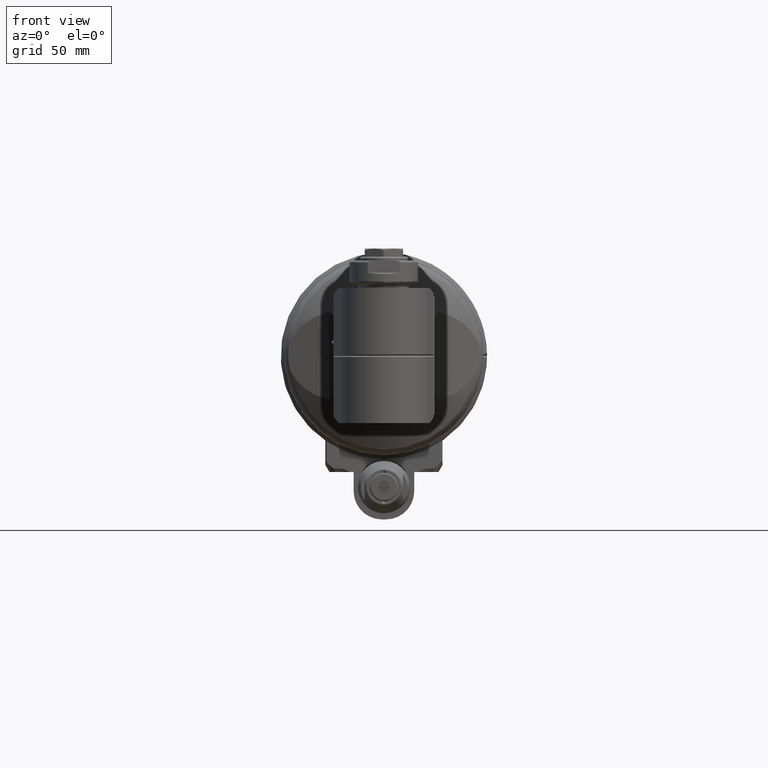
[diagram: clean part render]
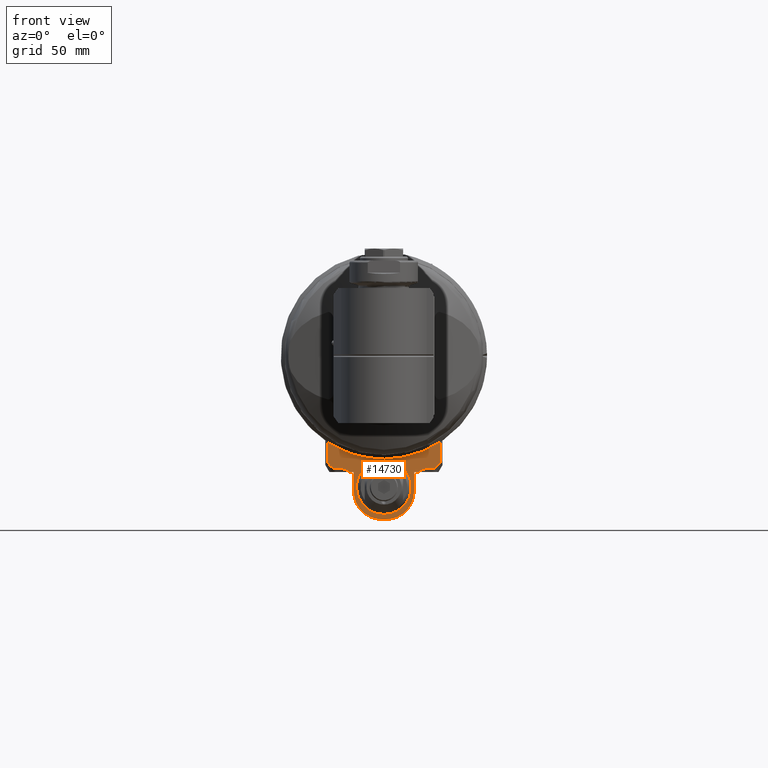
[diagram: same view with one face highlighted and labeled with its STEP entity id]
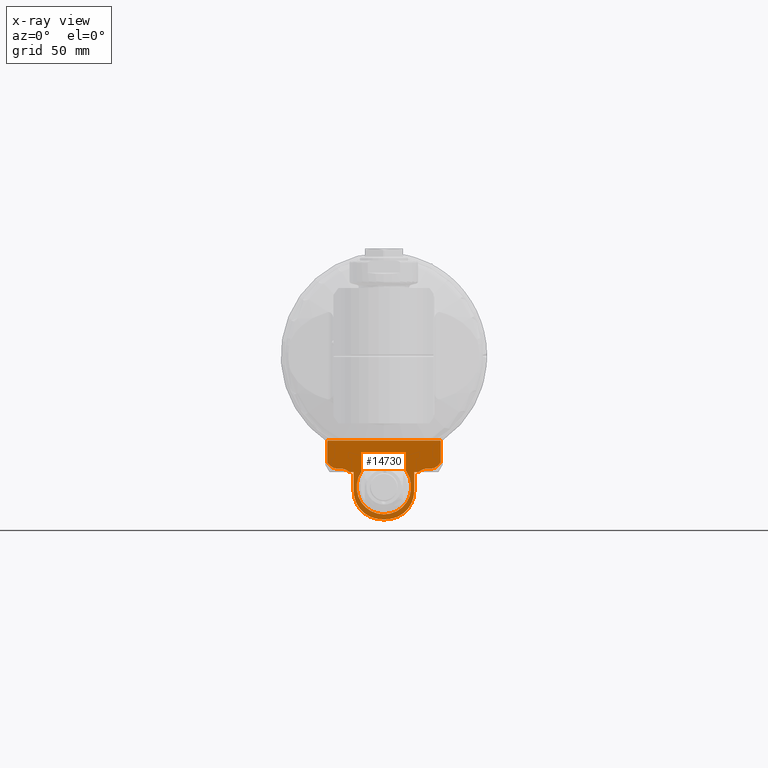
[diagram: x-ray of the same camera — body ghosted, the highlighted face saturated]
A machine part, front view. The second image highlights one B-rep face of the part: STEP entity #14730.
The next image is the same camera in x-ray: the body ghosted, the highlighted face saturated — about 0% of this face is hidden behind the body in this view.
In plain terms, the highlighted planar face has unit normal (0, 1, 0).
Its self-contained STEP definition (entity closure, byte-faithful):
#390=(
BOUNDED_CURVE()
B_SPLINE_CURVE(2,(#25313,#25314,#25315),.UNSPECIFIED.,.F.,.F.)
B_SPLINE_CURVE_WITH_KNOTS((3,3),(3.55785160962936,4.71041700258017),
 .UNSPECIFIED.)
CURVE()
GEOMETRIC_REPRESENTATION_ITEM()
RATIONAL_B_SPLINE_CURVE((1.65848175967881,1.65848175967881,1.58937838790044))
REPRESENTATION_ITEM('')
);
#391=(
BOUNDED_CURVE()
B_SPLINE_CURVE(2,(#25331,#25332,#25333),.UNSPECIFIED.,.F.,.F.)
B_SPLINE_CURVE_WITH_KNOTS((3,3),(-3.55785160962936,-2.40528621667854),
 .UNSPECIFIED.)
CURVE()
GEOMETRIC_REPRESENTATION_ITEM()
RATIONAL_B_SPLINE_CURVE((1.65848175967881,1.65848175967881,1.58937838790044))
REPRESENTATION_ITEM('')
);
#392=(
BOUNDED_CURVE()
B_SPLINE_CURVE(2,(#25337,#25338,#25339),.UNSPECIFIED.,.F.,.F.)
B_SPLINE_CURVE_WITH_KNOTS((3,3),(0.802084005964705,1.89472960778239),
 .UNSPECIFIED.)
CURVE()
GEOMETRIC_REPRESENTATION_ITEM()
RATIONAL_B_SPLINE_CURVE((1.71135239539047,2.06578511985151,2.06578511985151))
REPRESENTATION_ITEM('')
);
#393=(
BOUNDED_CURVE()
B_SPLINE_CURVE(2,(#25344,#25345,#25346),.UNSPECIFIED.,.F.,.F.)
B_SPLINE_CURVE_WITH_KNOTS((3,3),(-2.98737520958638,-1.89472960778286),
 .UNSPECIFIED.)
CURVE()
GEOMETRIC_REPRESENTATION_ITEM()
RATIONAL_B_SPLINE_CURVE((1.71135239540002,2.06578511985179,2.06578511985179))
REPRESENTATION_ITEM('')
);
#974=FACE_BOUND('',#3388,.T.);
#1546=CIRCLE('',#16183,14.);
#1547=CIRCLE('',#16184,14.);
#1548=CIRCLE('',#16185,13.5);
#2434=FACE_OUTER_BOUND('',#3387,.T.);
#3387=EDGE_LOOP('',(#12541,#12542,#12543,#12544,#12545,#12546,#12547,#12548,
#12549,#12550,#12551,#12552,#12553,#12554,#12555,#12556));
#3388=EDGE_LOOP('',(#12557));
#4504=LINE('',#25277,#5560);
#4513=LINE('',#25317,#5569);
#4514=LINE('',#25319,#5570);
#4515=LINE('',#25323,#5571);
#4516=LINE('',#25327,#5572);
#4517=LINE('',#25329,#5573);
#4518=LINE('',#25335,#5574);
#4519=LINE('',#25340,#5575);
#4520=LINE('',#25342,#5576);
#4521=LINE('',#25347,#5577);
#5560=VECTOR('',#19669,56.);
#5569=VECTOR('',#19698,2.101021651726);
#5570=VECTOR('',#19699,9.5);
#5571=VECTOR('',#19702,2.);
#5572=VECTOR('',#19705,9.5);
#5573=VECTOR('',#19706,2.101021651726);
#5574=VECTOR('',#19707,2.000000230854);
#5575=VECTOR('',#19708,10.89819432759);
#5576=VECTOR('',#19709,10.89819432768);
#5577=VECTOR('',#19710,2.000000230855);
#6924=VERTEX_POINT('',#25275);
#6925=VERTEX_POINT('',#25276);
#6941=VERTEX_POINT('',#25311);
#6942=VERTEX_POINT('',#25312);
#6943=VERTEX_POINT('',#25316);
#6944=VERTEX_POINT('',#25318);
#6945=VERTEX_POINT('',#25320);
#6946=VERTEX_POINT('',#25322);
#6947=VERTEX_POINT('',#25324);
#6948=VERTEX_POINT('',#25326);
#6949=VERTEX_POINT('',#25328);
#6950=VERTEX_POINT('',#25330);
#6951=VERTEX_POINT('',#25334);
#6952=VERTEX_POINT('',#25336);
#6953=VERTEX_POINT('',#25341);
#6954=VERTEX_POINT('',#25343);
#6955=VERTEX_POINT('',#25348);
#8864=EDGE_CURVE('',#6924,#6925,#4504,.T.);
#8882=EDGE_CURVE('',#6941,#6942,#390,.T.);
#8883=EDGE_CURVE('',#6943,#6942,#4513,.T.);
#8884=EDGE_CURVE('',#6944,#6943,#4514,.T.);
#8885=EDGE_CURVE('',#6944,#6945,#1546,.T.);
#8886=EDGE_CURVE('',#6946,#6945,#4515,.T.);
#8887=EDGE_CURVE('',#6946,#6947,#1547,.T.);
#8888=EDGE_CURVE('',#6948,#6947,#4516,.T.);
#8889=EDGE_CURVE('',#6949,#6948,#4517,.T.);
#8890=EDGE_CURVE('',#6950,#6949,#391,.T.);
#8891=EDGE_CURVE('',#6950,#6951,#4518,.T.);
#8892=EDGE_CURVE('',#6952,#6951,#392,.T.);
#8893=EDGE_CURVE('',#6925,#6952,#4519,.T.);
#8894=EDGE_CURVE('',#6953,#6924,#4520,.T.);
#8895=EDGE_CURVE('',#6953,#6954,#393,.T.);
#8896=EDGE_CURVE('',#6941,#6954,#4521,.T.);
#8897=EDGE_CURVE('',#6955,#6955,#1548,.T.);
#12541=ORIENTED_EDGE('',*,*,#8882,.T.);
#12542=ORIENTED_EDGE('',*,*,#8883,.F.);
#12543=ORIENTED_EDGE('',*,*,#8884,.F.);
#12544=ORIENTED_EDGE('',*,*,#8885,.T.);
#12545=ORIENTED_EDGE('',*,*,#8886,.F.);
#12546=ORIENTED_EDGE('',*,*,#8887,.T.);
#12547=ORIENTED_EDGE('',*,*,#8888,.F.);
#12548=ORIENTED_EDGE('',*,*,#8889,.F.);
#12549=ORIENTED_EDGE('',*,*,#8890,.F.);
#12550=ORIENTED_EDGE('',*,*,#8891,.T.);
#12551=ORIENTED_EDGE('',*,*,#8892,.F.);
#12552=ORIENTED_EDGE('',*,*,#8893,.F.);
#12553=ORIENTED_EDGE('',*,*,#8864,.F.);
#12554=ORIENTED_EDGE('',*,*,#8894,.F.);
#12555=ORIENTED_EDGE('',*,*,#8895,.T.);
#12556=ORIENTED_EDGE('',*,*,#8896,.F.);
#12557=ORIENTED_EDGE('',*,*,#8897,.T.);
#14070=PLANE('',#16182);
#14730=ADVANCED_FACE('',(#2434,#974),#14070,.F.);
#16182=AXIS2_PLACEMENT_3D('',#25310,#19696,#19697);
#16183=AXIS2_PLACEMENT_3D('',#25321,#19700,#19701);
#16184=AXIS2_PLACEMENT_3D('',#25325,#19703,#19704);
#16185=AXIS2_PLACEMENT_3D('',#25349,#19711,#19712);
#19669=DIRECTION('',(1.,0.,0.));
#19696=DIRECTION('center_axis',(0.,1.,0.));
#19697=DIRECTION('ref_axis',(0.,0.,1.));
#19698=DIRECTION('',(-1.,0.,0.));
#19699=DIRECTION('',(0.,0.,1.));
#19700=DIRECTION('center_axis',(0.,-1.,0.));
#19701=DIRECTION('ref_axis',(-1.,0.,0.));
#19702=DIRECTION('',(-1.,0.,0.));
#19703=DIRECTION('center_axis',(0.,-1.,0.));
#19704=DIRECTION('ref_axis',(0.,0.,-1.));
#19705=DIRECTION('',(0.,0.,-1.));
#19706=DIRECTION('',(-1.,0.,0.));
#19707=DIRECTION('',(1.,1.243449644052E-14,-2.486899288104E-14));
#19708=DIRECTION('',(7.173432786391E-12,4.231363670409E-13,-1.));
#19709=DIRECTION('',(0.,0.,1.));
#19710=DIRECTION('',(-1.,1.953992297796E-14,-3.907984595593E-14));
#19711=DIRECTION('center_axis',(0.,1.,0.));
#19712=DIRECTION('ref_axis',(0.,0.,-1.));
#25275=CARTESIAN_POINT('',(-28.,5.,-42.));
#25276=CARTESIAN_POINT('',(28.,5.,-42.));
#25277=CARTESIAN_POINT('',(-28.,5.,-42.));
#25310=CARTESIAN_POINT('Origin',(0.,5.,-40.75));
#25311=CARTESIAN_POINT('',(-22.,5.,-55.76795003158));
#25312=CARTESIAN_POINT('',(-17.10102165173,5.,-57.5));
#25313=CARTESIAN_POINT('Ctrl Pts',(-22.,5.00000000000001,-55.7679500315845));
#25314=CARTESIAN_POINT('Ctrl Pts',(-19.6525728232847,5.00000000000001,-55.7679500315845));
#25315=CARTESIAN_POINT('Ctrl Pts',(-17.101021651742,5.,-57.4999999999909));
#25316=CARTESIAN_POINT('',(-15.,5.,-57.5));
#25317=CARTESIAN_POINT('',(-15.,5.,-57.5));
#25318=CARTESIAN_POINT('',(-15.,5.,-67.));
#25319=CARTESIAN_POINT('',(-15.,5.,-67.));
#25320=CARTESIAN_POINT('',(-1.,5.,-81.));
#25321=CARTESIAN_POINT('Origin',(-1.,5.,-67.));
#25322=CARTESIAN_POINT('',(1.,5.,-81.));
#25323=CARTESIAN_POINT('',(1.,5.,-81.));
#25324=CARTESIAN_POINT('',(15.,5.,-67.));
#25325=CARTESIAN_POINT('Origin',(1.,5.,-67.));
#25326=CARTESIAN_POINT('',(15.,5.,-57.5));
#25327=CARTESIAN_POINT('',(15.,5.,-57.5));
#25328=CARTESIAN_POINT('',(17.10102165173,5.,-57.5));
#25329=CARTESIAN_POINT('',(17.10102165173,5.,-57.5));
#25330=CARTESIAN_POINT('',(22.,5.,-55.76795003158));
#25331=CARTESIAN_POINT('Ctrl Pts',(22.,5.00000000000001,-55.7679500315845));
#25332=CARTESIAN_POINT('Ctrl Pts',(19.6525728232847,5.,-55.7679500315845));
#25333=CARTESIAN_POINT('Ctrl Pts',(17.101021651742,5.,-57.4999999999909));
#25334=CARTESIAN_POINT('',(24.00000023085,5.,-55.76795003158));
#25335=CARTESIAN_POINT('',(22.,5.,-55.76795003158));
#25336=CARTESIAN_POINT('',(28.00000000008,5.,-52.89819432759));
#25337=CARTESIAN_POINT('Ctrl Pts',(28.0000000000716,5.,-52.8981943275832));
#25338=CARTESIAN_POINT('Ctrl Pts',(25.6568543539717,5.,-55.7679500315754));
#25339=CARTESIAN_POINT('Ctrl Pts',(24.00000023085,5.,-55.7679500315754));
#25340=CARTESIAN_POINT('',(28.,5.,-42.));
#25341=CARTESIAN_POINT('',(-28.,5.,-52.89819432768));
#25342=CARTESIAN_POINT('',(-28.,5.,-52.89819432768));
#25343=CARTESIAN_POINT('',(-24.00000023085,5.,-55.76795003158));
#25344=CARTESIAN_POINT('Ctrl Pts',(-27.9999999999973,5.,-52.8981943276781));
#25345=CARTESIAN_POINT('Ctrl Pts',(-25.6568543539499,5.,-55.7679500315792));
#25346=CARTESIAN_POINT('Ctrl Pts',(-24.00000023085,5.,-55.7679500315793));
#25347=CARTESIAN_POINT('',(-22.,5.,-55.76795003158));
#25348=CARTESIAN_POINT('',(0.,5.,-51.5));
#25349=CARTESIAN_POINT('Origin',(0.,5.,-65.));